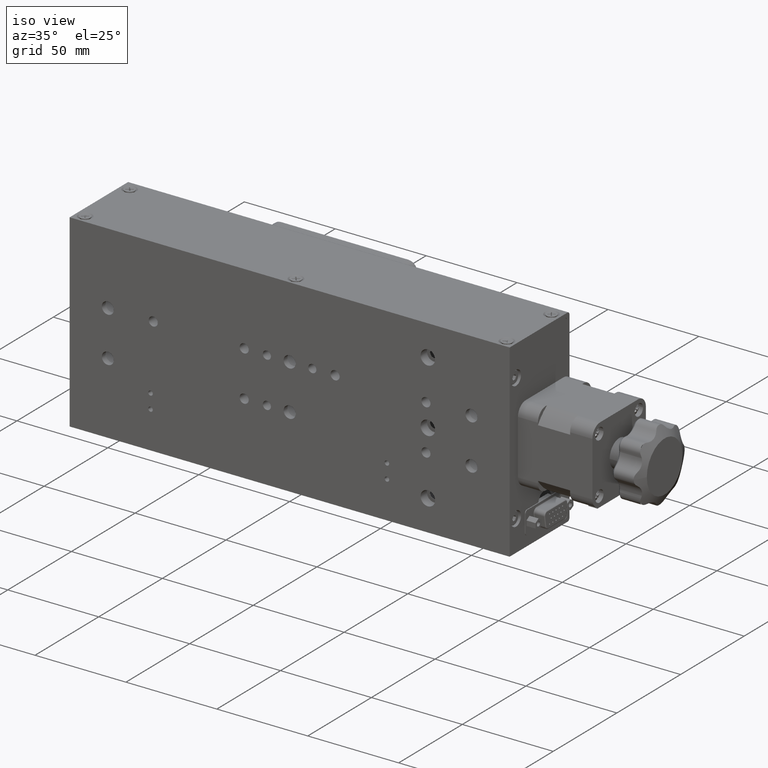
[diagram: clean part render]
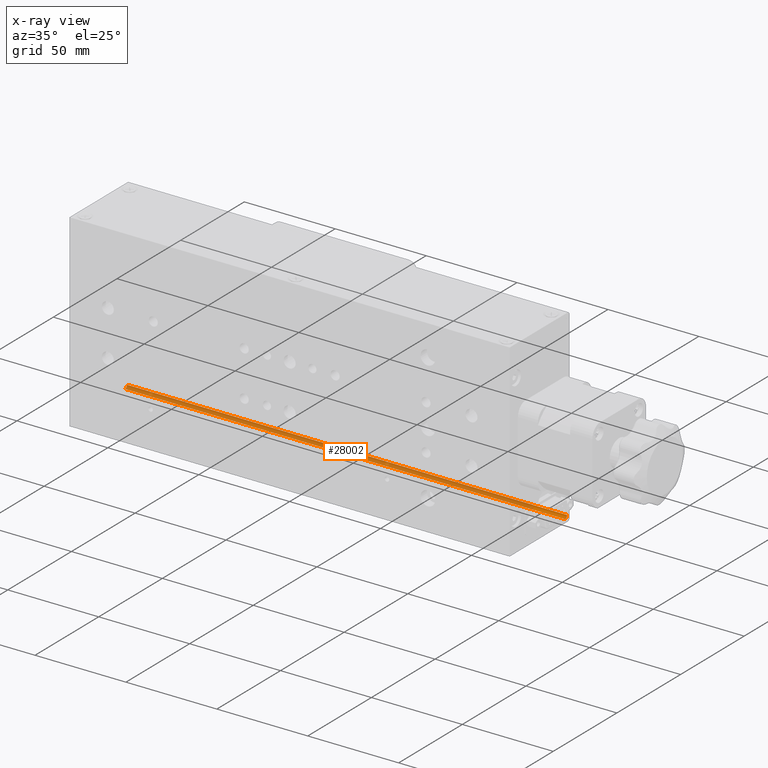
[diagram: x-ray — body ghosted, one internal face saturated and labeled with its STEP entity id]
A machine part, iso view, then the same camera in x-ray: the body is ghosted and one INTERNAL B-rep face — a face not visible from any outside direction — is saturated and labeled: STEP entity #28002.
In plain terms, the highlighted cylindrical surface (edge-blend (fillet) strip) has radius 1.5 mm, axis along (-1, -0, -0).
Its self-contained STEP definition (entity closure, byte-faithful):
#2073 = ORIENTED_EDGE ( 'NONE', *, *, #16092, .T. ) ;
#2114 = CARTESIAN_POINT ( 'NONE',  ( -121.0000000000000000, 43.49999999999999300, -49.99999999999990100 ) ) ;
#2599 = AXIS2_PLACEMENT_3D ( 'NONE', #11496, #30620, #22540 ) ;
#2719 = CARTESIAN_POINT ( 'NONE',  ( 121.0000000000000000, 44.99999999999998600, -48.49999999999990800 ) ) ;
#2736 = CIRCLE ( 'NONE', #13734, 1.499999999999994400 ) ;
#3051 = DIRECTION ( 'NONE',  ( -1.000000000000000000, -0.0000000000000000000, -0.0000000000000000000 ) ) ;
#3270 = EDGE_CURVE ( 'NONE', #23359, #20730, #2736, .T. ) ;
#4819 = CARTESIAN_POINT ( 'NONE',  ( 121.0000000000000000, 44.99999999999998600, -48.49999999999990800 ) ) ;
#6267 = AXIS2_PLACEMENT_3D ( 'NONE', #23044, #6570, #25820 ) ;
#6570 = DIRECTION ( 'NONE',  ( -1.000000000000000000, -0.0000000000000000000, -0.0000000000000000000 ) ) ;
#11496 = CARTESIAN_POINT ( 'NONE',  ( 121.0000000000000000, 43.49999999999999300, -48.49999999999990800 ) ) ;
#11964 = VERTEX_POINT ( 'NONE', #2114 ) ;
#12814 = DIRECTION ( 'NONE',  ( -1.000000000000000000, -0.0000000000000000000, -0.0000000000000000000 ) ) ;
#13734 = AXIS2_PLACEMENT_3D ( 'NONE', #33960, #31305, #17435 ) ;
#14274 = FACE_OUTER_BOUND ( 'NONE', #19714, .T. ) ;
#15517 = ORIENTED_EDGE ( 'NONE', *, *, #3270, .F. ) ;
#16092 = EDGE_CURVE ( 'NONE', #23359, #19950, #20161, .T. ) ;
#16730 = CARTESIAN_POINT ( 'NONE',  ( 121.0000000000000000, 43.49999999999999300, -49.99999999999990100 ) ) ;
#17340 = VECTOR ( 'NONE', #3051, 1000.000000000000000 ) ;
#17435 = DIRECTION ( 'NONE',  ( 0.0000000000000000000, 0.0000000000000000000, -1.000000000000000000 ) ) ;
#18730 = EDGE_CURVE ( 'NONE', #20730, #11964, #24672, .T. ) ;
#19714 = EDGE_LOOP ( 'NONE', ( #20807, #23011, #15517, #2073 ) ) ;
#19950 = VERTEX_POINT ( 'NONE', #31329 ) ;
#20161 = LINE ( 'NONE', #4819, #34043 ) ;
#20730 = VERTEX_POINT ( 'NONE', #29934 ) ;
#20807 = ORIENTED_EDGE ( 'NONE', *, *, #25978, .T. ) ;
#22540 = DIRECTION ( 'NONE',  ( 0.0000000000000000000, 0.0000000000000000000, 1.000000000000000000 ) ) ;
#23011 = ORIENTED_EDGE ( 'NONE', *, *, #18730, .F. ) ;
#23044 = CARTESIAN_POINT ( 'NONE',  ( -121.0000000000000000, 43.49999999999999300, -48.49999999999990800 ) ) ;
#23359 = VERTEX_POINT ( 'NONE', #2719 ) ;
#24672 = LINE ( 'NONE', #16730, #17340 ) ;
#25820 = DIRECTION ( 'NONE',  ( 0.0000000000000000000, 0.0000000000000000000, -1.000000000000000000 ) ) ;
#25978 = EDGE_CURVE ( 'NONE', #19950, #11964, #33163, .T. ) ;
#28002 = ADVANCED_FACE ( 'NONE', ( #14274 ), #32818, .F. ) ;
#29934 = CARTESIAN_POINT ( 'NONE',  ( 121.0000000000000000, 43.49999999999999300, -49.99999999999990100 ) ) ;
#30620 = DIRECTION ( 'NONE',  ( -1.000000000000000000, -0.0000000000000000000, -0.0000000000000000000 ) ) ;
#31305 = DIRECTION ( 'NONE',  ( -1.000000000000000000, -0.0000000000000000000, -0.0000000000000000000 ) ) ;
#31329 = CARTESIAN_POINT ( 'NONE',  ( -121.0000000000000000, 44.99999999999998600, -48.49999999999990800 ) ) ;
#32818 = CYLINDRICAL_SURFACE ( 'NONE', #2599, 1.499999999999994400 ) ;
#33163 = CIRCLE ( 'NONE', #6267, 1.499999999999994400 ) ;
#33960 = CARTESIAN_POINT ( 'NONE',  ( 121.0000000000000000, 43.49999999999999300, -48.49999999999990800 ) ) ;
#34043 = VECTOR ( 'NONE', #12814, 1000.000000000000000 ) ;